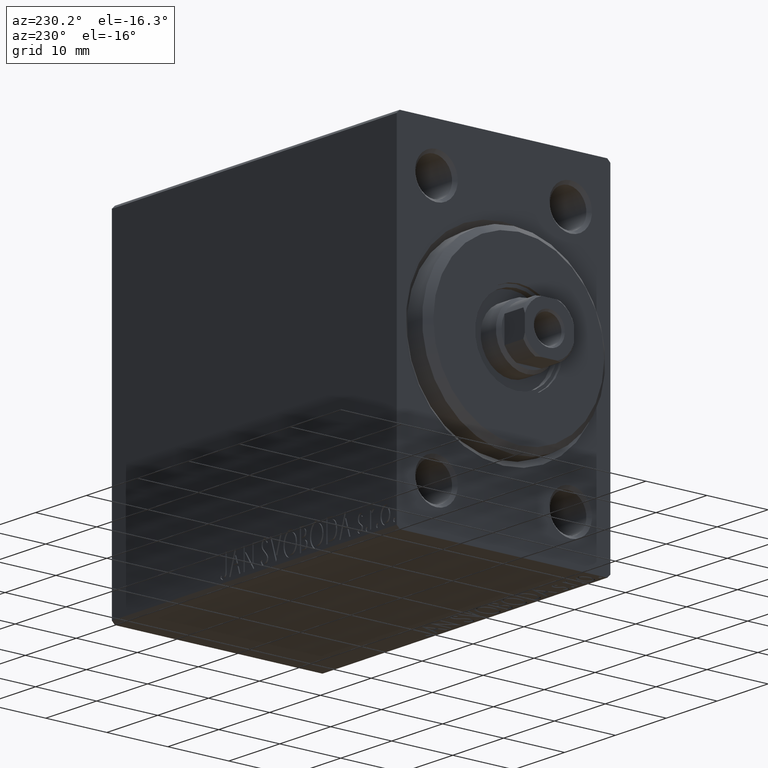
[diagram: clean part render]
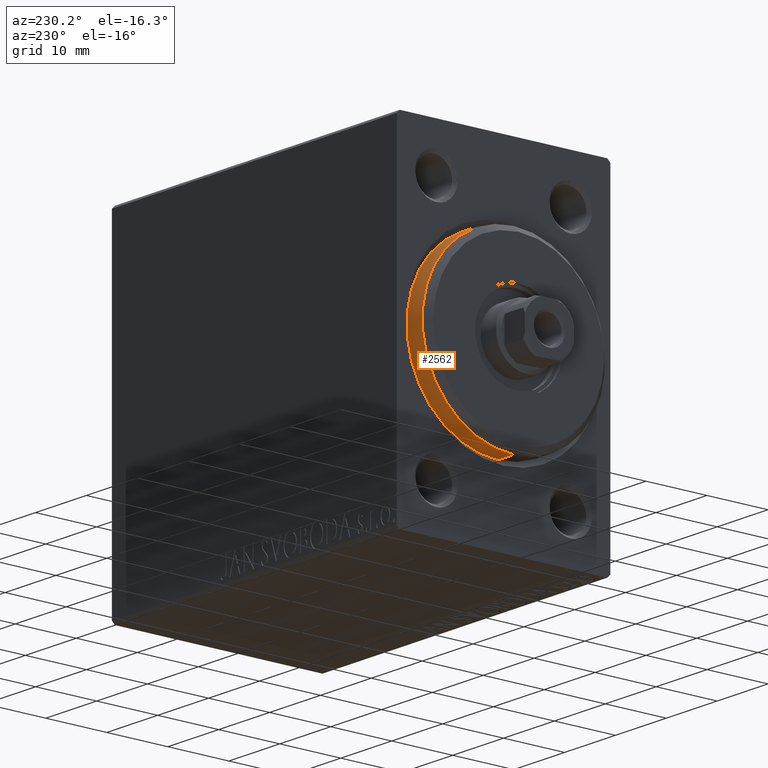
[diagram: same view with one face highlighted and labeled with its STEP entity id]
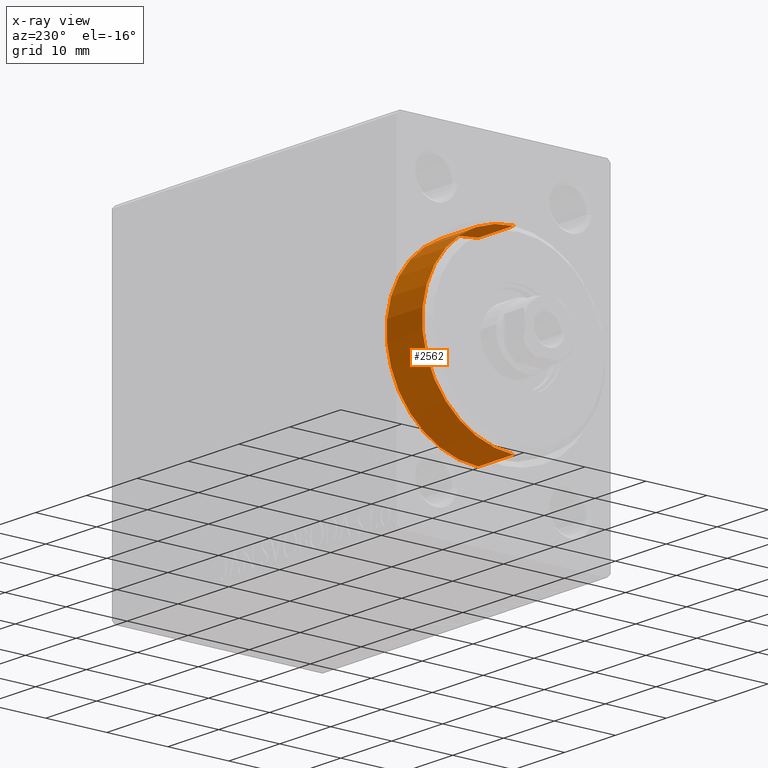
[diagram: x-ray of the same camera — body ghosted, the highlighted face saturated]
A machine part, auxiliary view. The second image highlights one B-rep face of the part: STEP entity #2562.
The next image is the same camera in x-ray: the body ghosted, the highlighted face saturated — about 0% of this face is hidden behind the body in this view.
In plain terms, the highlighted cylindrical surface (partial cylindrical patch) has radius 15 mm, axis along (1, -0, -0).
Its self-contained STEP definition (entity closure, byte-faithful):
#482 = EDGE_LOOP ( 'NONE', ( #5826, #25782, #19040, #837 ) ) ;
#563 = EDGE_CURVE ( 'NONE', #38804, #29584, #1242, .T. ) ;
#768 = EDGE_CURVE ( 'NONE', #11340, #16432, #44236, .T. ) ;
#837 = ORIENTED_EDGE ( 'NONE', *, *, #563, .F. ) ;
#1242 = CIRCLE ( 'NONE', #26317, 15.00000000000000000 ) ;
#1326 = DIRECTION ( 'NONE',  ( -1.000000000000000000, -0.000000000000000000, -0.000000000000000000 ) ) ;
#2191 = CARTESIAN_POINT ( 'NONE',  ( -5.000000000000000000, 0.000000000000000000, 0.000000000000000000 ) ) ;
#2562 = ADVANCED_FACE ( 'NONE', ( #26208 ), #4697, .T. ) ;
#4697 = CYLINDRICAL_SURFACE ( 'NONE', #15637, 15.00000000000000000 ) ;
#5826 = ORIENTED_EDGE ( 'NONE', *, *, #43619, .F. ) ;
#8076 = CARTESIAN_POINT ( 'NONE',  ( 3.000000000000000000, 1.836970198721029589E-15, -15.00000000000000000 ) ) ;
#10025 = LINE ( 'NONE', #40742, #23457 ) ;
#11340 = VERTEX_POINT ( 'NONE', #23676 ) ;
#11900 = CARTESIAN_POINT ( 'NONE',  ( -5.000000000000000000, 0.000000000000000000, 15.00000000000000000 ) ) ;
#14262 = CARTESIAN_POINT ( 'NONE',  ( 1.999999999999995781, 0.000000000000000000, 15.00000000000000000 ) ) ;
#15637 = AXIS2_PLACEMENT_3D ( 'NONE', #43239, #32708, #32930 ) ;
#16432 = VERTEX_POINT ( 'NONE', #14262 ) ;
#18067 = DIRECTION ( 'NONE',  ( 0.000000000000000000, 0.000000000000000000, -1.000000000000000000 ) ) ;
#18513 = CARTESIAN_POINT ( 'NONE',  ( 1.999999999999995781, 0.000000000000000000, 0.000000000000000000 ) ) ;
#19040 = ORIENTED_EDGE ( 'NONE', *, *, #39607, .T. ) ;
#23457 = VECTOR ( 'NONE', #30640, 1000.000000000000000 ) ;
#23676 = CARTESIAN_POINT ( 'NONE',  ( 1.999999999999995781, 1.836970198721029589E-15, -15.00000000000000000 ) ) ;
#25782 = ORIENTED_EDGE ( 'NONE', *, *, #768, .T. ) ;
#26198 = DIRECTION ( 'NONE',  ( 0.000000000000000000, 0.000000000000000000, 1.000000000000000000 ) ) ;
#26208 = FACE_OUTER_BOUND ( 'NONE', #482, .T. ) ;
#26317 = AXIS2_PLACEMENT_3D ( 'NONE', #2191, #43229, #26198 ) ;
#29221 = AXIS2_PLACEMENT_3D ( 'NONE', #18513, #31983, #18067 ) ;
#29584 = VERTEX_POINT ( 'NONE', #11900 ) ;
#30640 = DIRECTION ( 'NONE',  ( -1.000000000000000000, -0.000000000000000000, -0.000000000000000000 ) ) ;
#31983 = DIRECTION ( 'NONE',  ( -1.000000000000000000, 0.000000000000000000, 0.000000000000000000 ) ) ;
#32708 = DIRECTION ( 'NONE',  ( -1.000000000000000000, -0.000000000000000000, -0.000000000000000000 ) ) ;
#32930 = DIRECTION ( 'NONE',  ( 0.000000000000000000, 0.000000000000000000, 1.000000000000000000 ) ) ;
#34762 = LINE ( 'NONE', #8076, #39406 ) ;
#36687 = CARTESIAN_POINT ( 'NONE',  ( -5.000000000000000000, 1.836970198721029589E-15, -15.00000000000000000 ) ) ;
#38804 = VERTEX_POINT ( 'NONE', #36687 ) ;
#39406 = VECTOR ( 'NONE', #1326, 1000.000000000000000 ) ;
#39607 = EDGE_CURVE ( 'NONE', #16432, #29584, #10025, .T. ) ;
#40742 = CARTESIAN_POINT ( 'NONE',  ( 3.000000000000000000, 0.000000000000000000, 15.00000000000000000 ) ) ;
#43229 = DIRECTION ( 'NONE',  ( -1.000000000000000000, 0.000000000000000000, 0.000000000000000000 ) ) ;
#43239 = CARTESIAN_POINT ( 'NONE',  ( 3.000000000000000000, 0.000000000000000000, 0.000000000000000000 ) ) ;
#43619 = EDGE_CURVE ( 'NONE', #11340, #38804, #34762, .T. ) ;
#44236 = CIRCLE ( 'NONE', #29221, 15.00000000000000000 ) ;